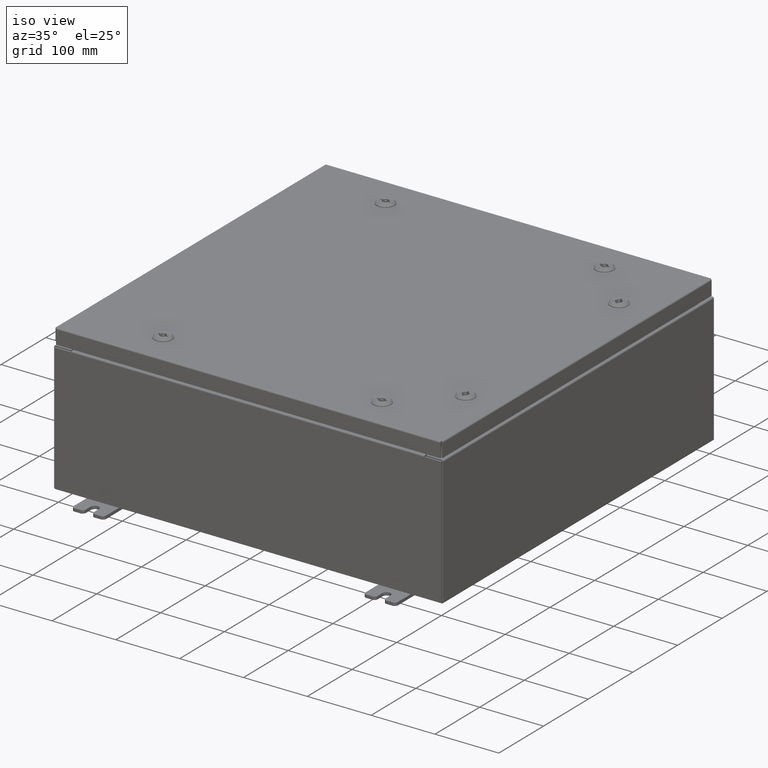
[diagram: clean part render]
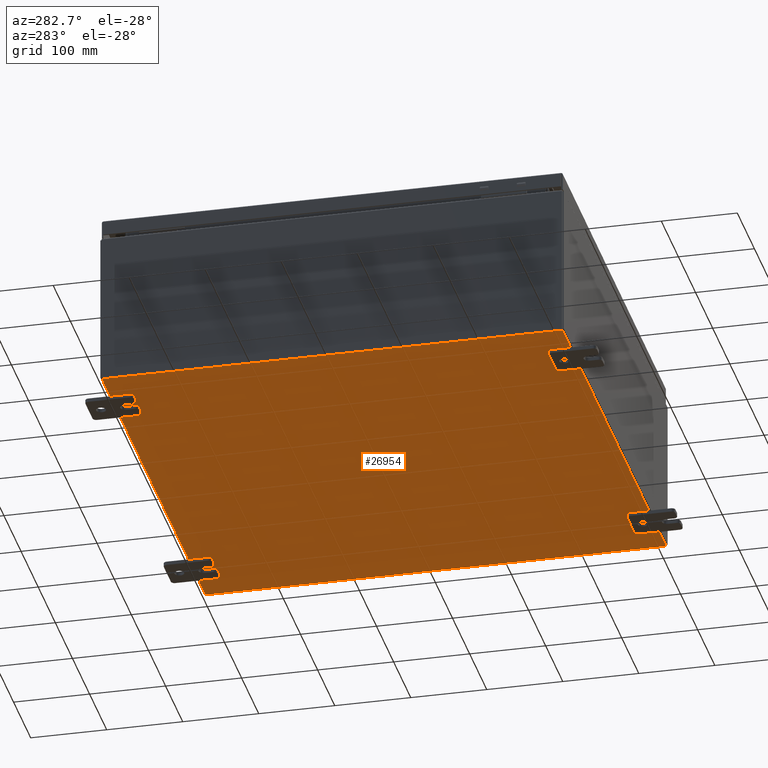
[diagram: tour spotlight — one face highlighted and labeled with its STEP entity id]
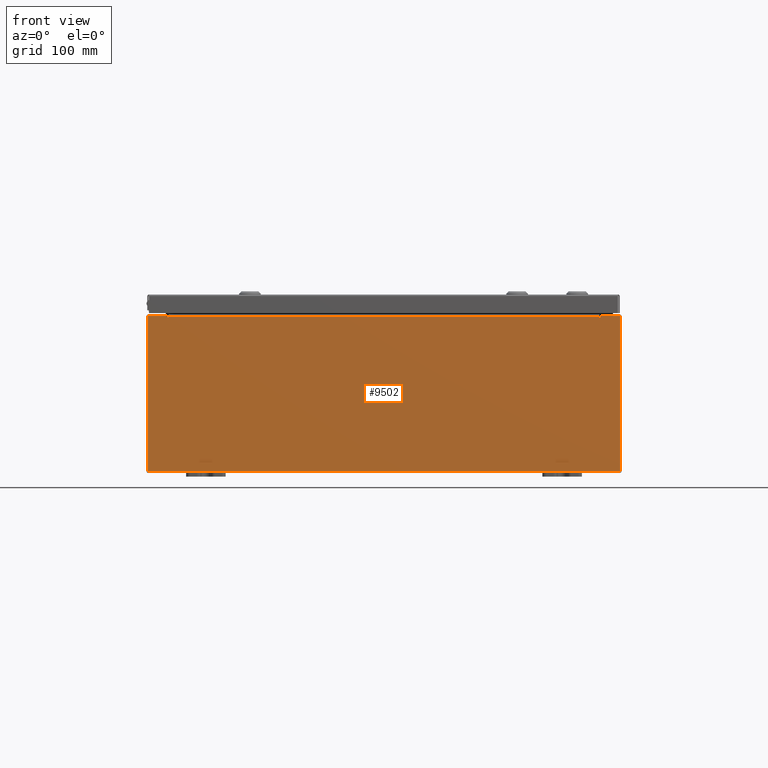
[diagram: tour spotlight — one face highlighted and labeled with its STEP entity id]
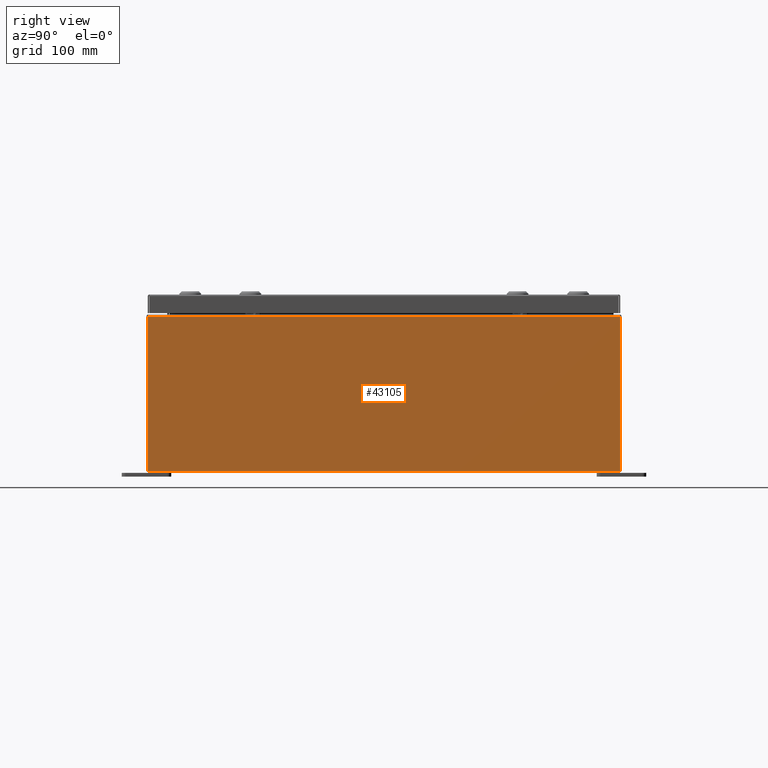
[diagram: tour spotlight — one face highlighted and labeled with its STEP entity id]
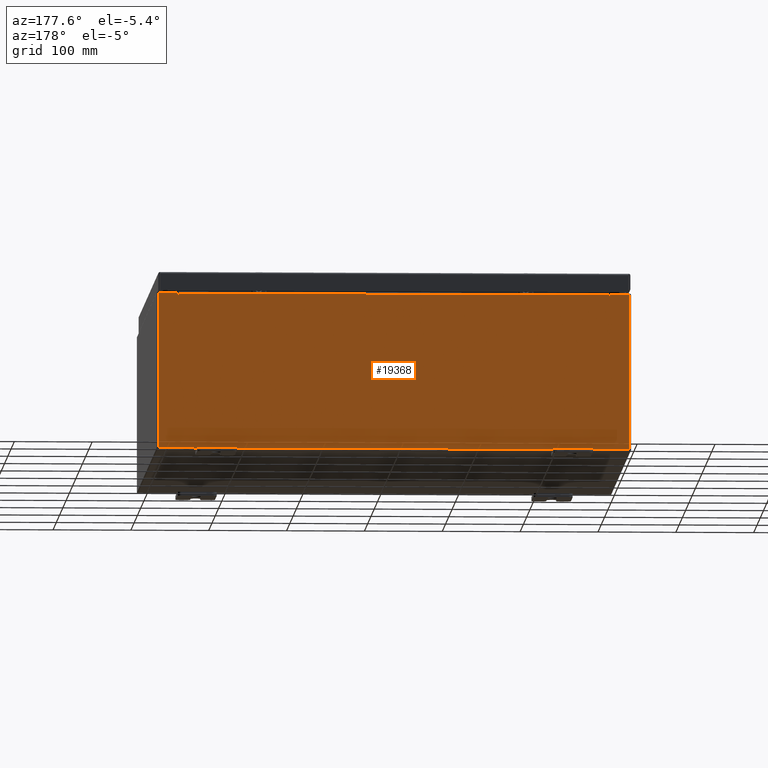
[diagram: tour spotlight — one face highlighted and labeled with its STEP entity id]
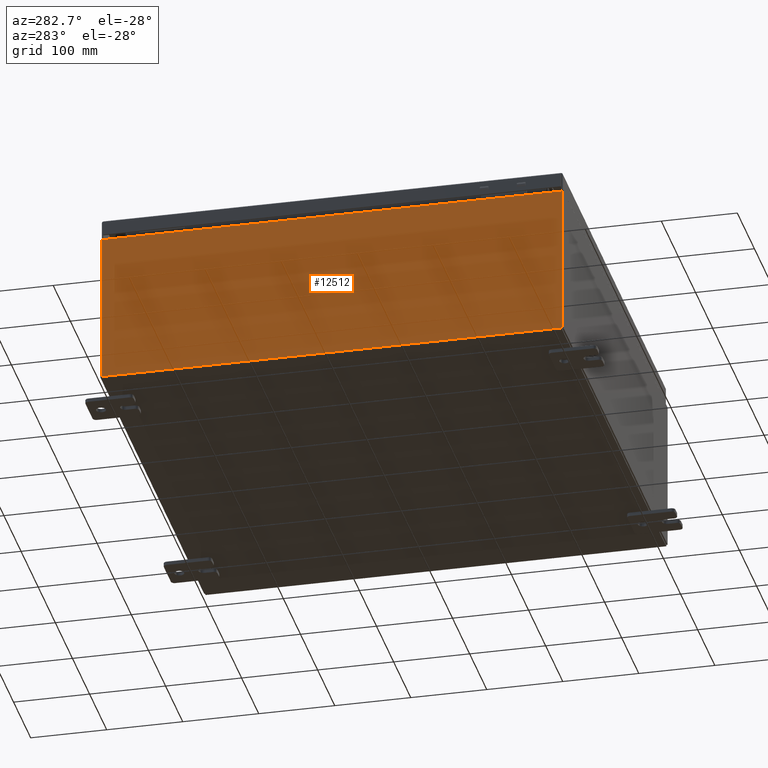
[diagram: tour spotlight — one face highlighted and labeled with its STEP entity id]
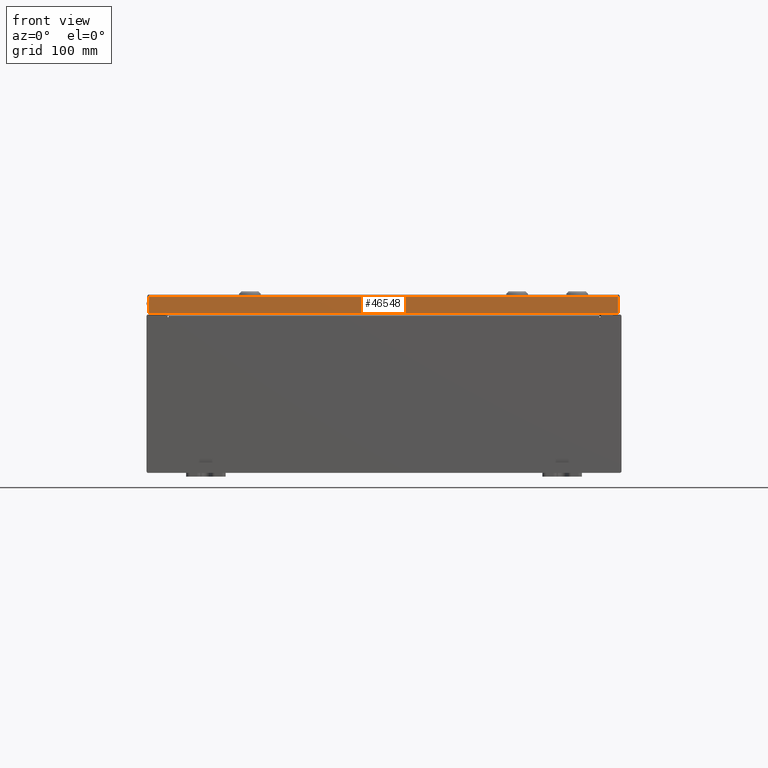
[diagram: tour spotlight — one face highlighted and labeled with its STEP entity id]
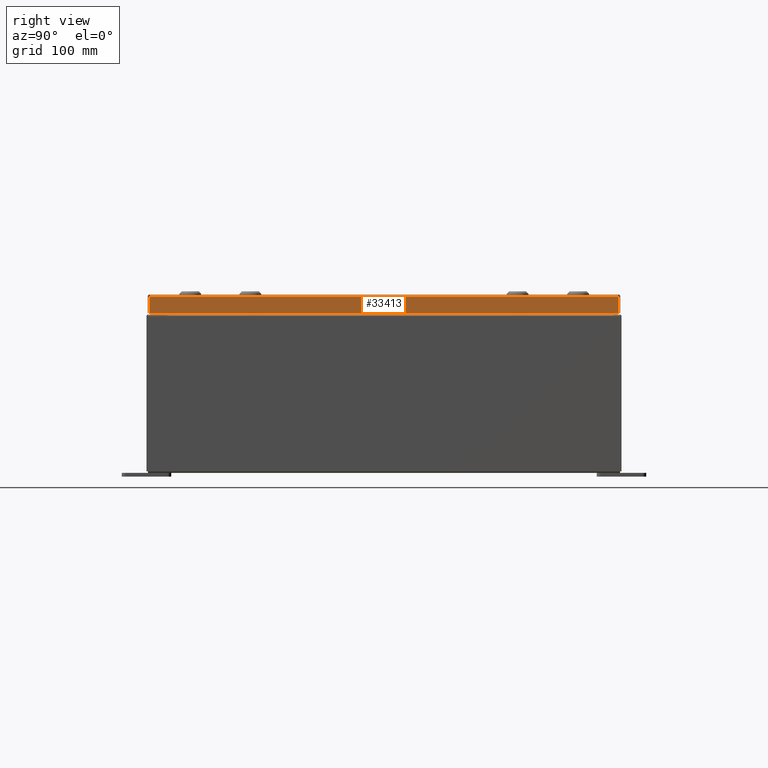
[diagram: tour spotlight — one face highlighted and labeled with its STEP entity id]
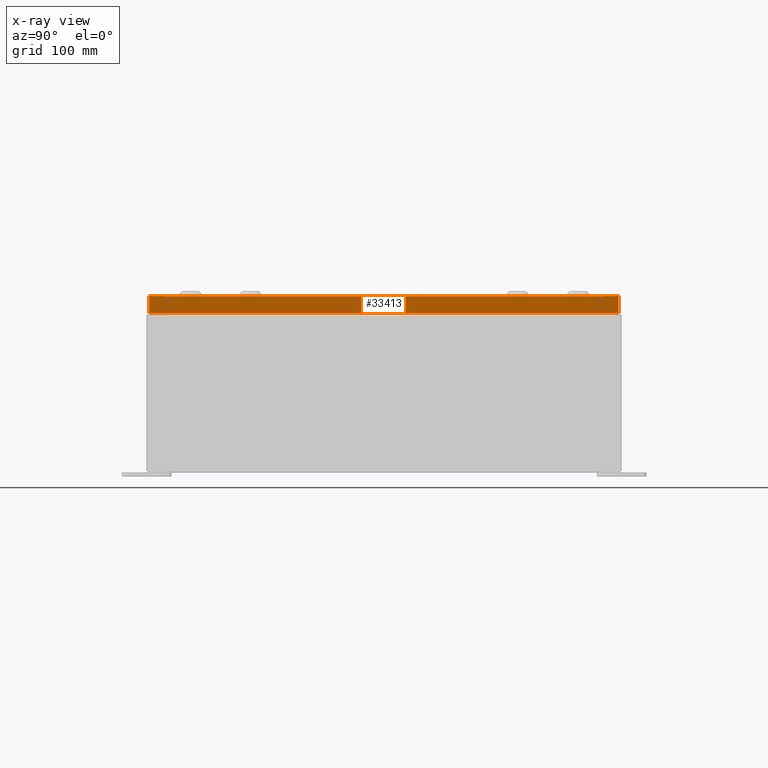
[diagram: x-ray of the same camera — body ghosted, this tour face saturated]
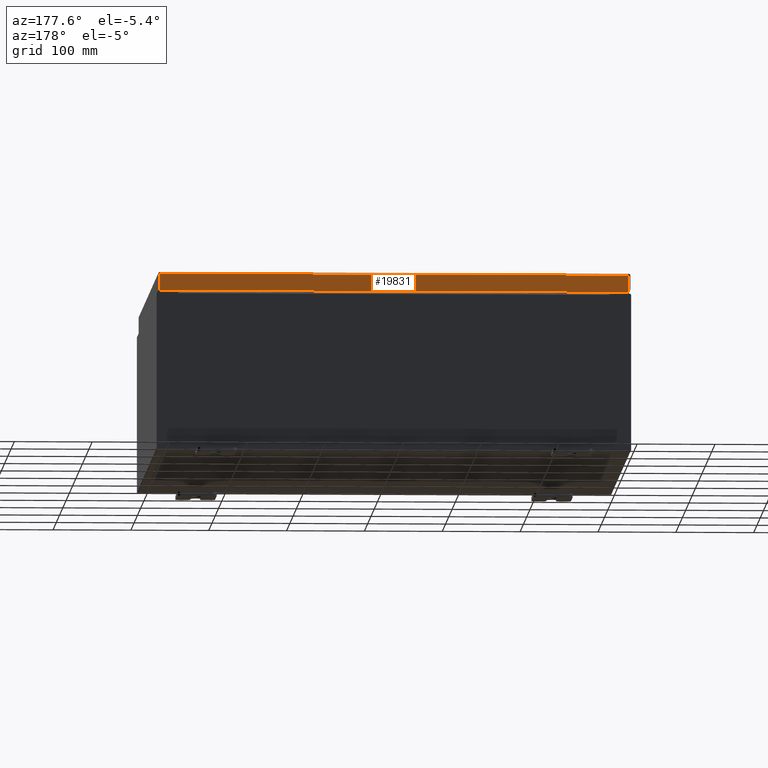
[diagram: tour spotlight — one face highlighted and labeled with its STEP entity id]
A machine part: a face-by-face anatomy tour. The part has 5420 B-rep faces; the first image is the clean iso view, then the 8 largest visible faces are spotlighted one at a time (largest first), each with its STEP entity span.

Face 1 — auxiliary view, entity #26954. In plain terms, the highlighted planar face has unit normal (0, 0, -1).
Definition (entity closure, byte-faithful):
#729 = VERTEX_POINT ( 'NONE', #18880 ) ;
#6023 = CARTESIAN_POINT ( 'NONE',  ( -11.91230000000000400, -11.92530000000000400, -0.07469999999999994700 ) ) ;
#7501 = CARTESIAN_POINT ( 'NONE',  ( 11.91229999999999800, 11.92529999999999600, -0.07469999999999994700 ) ) ;
#9193 = VECTOR ( 'NONE', #40409, 39.37007874015748100 ) ;
#10005 = CARTESIAN_POINT ( 'NONE',  ( -11.91230000000000400, -11.92530000000000000, -0.07469999999999994700 ) ) ;
#10063 = DIRECTION ( 'NONE',  ( -0.0000000000000000000, -1.000000000000000000, -0.0000000000000000000 ) ) ;
#12398 = ORIENTED_EDGE ( 'NONE', *, *, #39024, .F. ) ;
#13178 = AXIS2_PLACEMENT_3D ( 'NONE', #22010, #26939, #61169 ) ;
#13220 = DIRECTION ( 'NONE',  ( 1.000000000000000000, 0.0000000000000000000, 0.0000000000000000000 ) ) ;
#15040 = DIRECTION ( 'NONE',  ( -1.000000000000000000, -0.0000000000000000000, -0.0000000000000000000 ) ) ;
#16291 = VECTOR ( 'NONE', #10063, 39.37007874015748100 ) ;
#18880 = CARTESIAN_POINT ( 'NONE',  ( 11.91229999999998900, -11.92530000000000400, -0.07470000000000000300 ) ) ;
#19210 = LINE ( 'NONE', #6023, #9193 ) ;
#20700 = FACE_OUTER_BOUND ( 'NONE', #62757, .T. ) ;
#20965 = ORIENTED_EDGE ( 'NONE', *, *, #26267, .F. ) ;
#21484 = VECTOR ( 'NONE', #13220, 39.37007874015748100 ) ;
#22010 = CARTESIAN_POINT ( 'NONE',  ( 0.0000000000000000000, 0.0000000000000000000, -0.07470000000000000300 ) ) ;
#23048 = EDGE_CURVE ( 'NONE', #62707, #729, #27855, .T. ) ;
#24445 = CARTESIAN_POINT ( 'NONE',  ( 11.91229999999999800, 11.92529999999999800, -0.07469999999999994700 ) ) ;
#25875 = EDGE_CURVE ( 'NONE', #37989, #59841, #19210, .T. ) ;
#26267 = EDGE_CURVE ( 'NONE', #37989, #729, #47626, .T. ) ;
#26939 = DIRECTION ( 'NONE',  ( 0.0000000000000000000, 0.0000000000000000000, -1.000000000000000000 ) ) ;
#26954 = ADVANCED_FACE ( 'NONE', ( #20700 ), #46506, .T. ) ;
#27855 = LINE ( 'NONE', #24445, #16291 ) ;
#37559 = ORIENTED_EDGE ( 'NONE', *, *, #25875, .T. ) ;
#37989 = VERTEX_POINT ( 'NONE', #10005 ) ;
#38617 = ORIENTED_EDGE ( 'NONE', *, *, #23048, .T. ) ;
#39024 = EDGE_CURVE ( 'NONE', #62707, #59841, #59524, .T. ) ;
#40409 = DIRECTION ( 'NONE',  ( -0.0000000000000000000, 1.000000000000000000, -0.0000000000000000000 ) ) ;
#45043 = VECTOR ( 'NONE', #15040, 39.37007874015748100 ) ;
#46506 = PLANE ( 'NONE',  #13178 ) ;
#47626 = LINE ( 'NONE', #57169, #21484 ) ;
#49433 = CARTESIAN_POINT ( 'NONE',  ( -12.00000000000000400, 11.92529999999999800, -0.07470000000000000300 ) ) ;
#57169 = CARTESIAN_POINT ( 'NONE',  ( -12.00000000000000400, -11.92530000000000400, -0.07470000000000000300 ) ) ;
#57250 = CARTESIAN_POINT ( 'NONE',  ( -11.91230000000000400, 11.92529999999999800, -0.07470000000000000300 ) ) ;
#59524 = LINE ( 'NONE', #49433, #45043 ) ;
#59841 = VERTEX_POINT ( 'NONE', #57250 ) ;
#61169 = DIRECTION ( 'NONE',  ( -1.000000000000000000, 0.0000000000000000000, -0.0000000000000000000 ) ) ;
#62707 = VERTEX_POINT ( 'NONE', #7501 ) ;
#62757 = EDGE_LOOP ( 'NONE', ( #20965, #37559, #12398, #38617 ) ) ;

Face 2 — front view, entity #9502. In plain terms, the highlighted planar face has unit normal (-0, 1, -0).
Definition (entity closure, byte-faithful):
#2 = CARTESIAN_POINT ( 'NONE',  ( -10.92454999999999800, 0.0000000000000000000, 3.874949999999999700 ) ) ;
#640 = CARTESIAN_POINT ( 'NONE',  ( -10.90587500000000000, 0.0000000000000000000, 3.874949999999999700 ) ) ;
#912 = EDGE_CURVE ( 'NONE', #27180, #1119, #57610, .T. ) ;
#1029 = CARTESIAN_POINT ( 'NONE',  ( -10.92454999999999800, 0.0000000000000000000, 3.925299999999999600 ) ) ;
#1119 = VERTEX_POINT ( 'NONE', #1425 ) ;
#1281 = DIRECTION ( 'NONE',  ( 0.0000000000000000000, -1.000000000000000000, 0.0000000000000000000 ) ) ;
#1425 = CARTESIAN_POINT ( 'NONE',  ( 10.88720000000000200, 0.0000000000000000000, 3.912299999999999700 ) ) ;
#2493 = EDGE_CURVE ( 'NONE', #38007, #1119, #32469, .T. ) ;
#2518 = DIRECTION ( 'NONE',  ( -0.0000000000000000000, -0.0000000000000000000, 1.000000000000000000 ) ) ;
#2762 = VECTOR ( 'NONE', #17416, 39.37007874015748100 ) ;
#2878 = CARTESIAN_POINT ( 'NONE',  ( -10.88720000000000000, -0.0000000000000000000, 3.874949999999999700 ) ) ;
#3585 = DIRECTION ( 'NONE',  ( -1.000000000000000000, -0.0000000000000000000, -0.0000000000000000000 ) ) ;
#5577 = DIRECTION ( 'NONE',  ( 0.0000000000000000000, 0.0000000000000000000, -1.000000000000000000 ) ) ;
#6754 = VECTOR ( 'NONE', #2518, 39.37007874015748100 ) ;
#7212 = VERTEX_POINT ( 'NONE', #49278 ) ;
#7562 = ORIENTED_EDGE ( 'NONE', *, *, #62289, .T. ) ;
#7894 = ORIENTED_EDGE ( 'NONE', *, *, #29699, .T. ) ;
#8317 = LINE ( 'NONE', #27001, #6754 ) ;
#8319 = CARTESIAN_POINT ( 'NONE',  ( 10.90587500000000200, 0.0000000000000000000, 3.874949999999999700 ) ) ;
#9017 = LINE ( 'NONE', #10357, #35189 ) ;
#9502 = ADVANCED_FACE ( 'NONE', ( #27250 ), #60005, .F. ) ;
#10357 = CARTESIAN_POINT ( 'NONE',  ( -11.92530000000000000, 0.0000000000000000000, 3.925299999999999600 ) ) ;
#10682 = CARTESIAN_POINT ( 'NONE',  ( 10.92455000000000000, 0.0000000000000000000, 3.925299999999999600 ) ) ;
#10823 = CARTESIAN_POINT ( 'NONE',  ( -10.88720000000000200, 1.024442997624098700E-016, 3.912299999999999700 ) ) ;
#10890 = AXIS2_PLACEMENT_3D ( 'NONE', #25782, #1281, #35672 ) ;
#12393 = VERTEX_POINT ( 'NONE', #53339 ) ;
#13250 = DIRECTION ( 'NONE',  ( 0.0000000000000000000, 0.0000000000000000000, -1.000000000000000000 ) ) ;
#14469 = CARTESIAN_POINT ( 'NONE',  ( -11.92530000000000000, 0.0000000000000000000, 3.925299999999999600 ) ) ;
#14478 = VERTEX_POINT ( 'NONE', #2 ) ;
#15434 = VECTOR ( 'NONE', #16164, 39.37007874015748100 ) ;
#15562 = CIRCLE ( 'NONE', #27048, 0.01867499999999949400 ) ;
#16164 = DIRECTION ( 'NONE',  ( 1.000000000000000000, 0.0000000000000000000, 0.0000000000000000000 ) ) ;
#16521 = EDGE_CURVE ( 'NONE', #12393, #7212, #59630, .T. ) ;
#17416 = DIRECTION ( 'NONE',  ( 0.0000000000000000000, 0.0000000000000000000, 1.000000000000000000 ) ) ;
#17419 = ORIENTED_EDGE ( 'NONE', *, *, #50487, .F. ) ;
#17671 = CARTESIAN_POINT ( 'NONE',  ( -11.92530000000000000, 0.0000000000000000000, 3.925299999999999600 ) ) ;
#18678 = EDGE_CURVE ( 'NONE', #14478, #61600, #53432, .T. ) ;
#20953 = CIRCLE ( 'NONE', #37211, 0.01867499999999949400 ) ;
#21042 = EDGE_CURVE ( 'NONE', #27180, #28343, #35686, .T. ) ;
#21123 = VERTEX_POINT ( 'NONE', #17671 ) ;
#22942 = VECTOR ( 'NONE', #41901, 39.37007874015748100 ) ;
#23094 = VERTEX_POINT ( 'NONE', #10682 ) ;
#23175 = ORIENTED_EDGE ( 'NONE', *, *, #18678, .F. ) ;
#23623 = VECTOR ( 'NONE', #58560, 39.37007874015748100 ) ;
#24727 = CARTESIAN_POINT ( 'NONE',  ( 11.92530000000000000, 0.0000000000000000000, 3.925299999999999600 ) ) ;
#25782 = CARTESIAN_POINT ( 'NONE',  ( 0.0000000000000000000, 0.0000000000000000000, 0.0000000000000000000 ) ) ;
#26717 = ORIENTED_EDGE ( 'NONE', *, *, #43690, .F. ) ;
#27001 = CARTESIAN_POINT ( 'NONE',  ( -11.92530000000000000, 0.0000000000000000000, 3.925299999999999600 ) ) ;
#27048 = AXIS2_PLACEMENT_3D ( 'NONE', #8319, #42677, #13250 ) ;
#27180 = VERTEX_POINT ( 'NONE', #48970 ) ;
#27250 = FACE_OUTER_BOUND ( 'NONE', #31634, .T. ) ;
#28124 = ORIENTED_EDGE ( 'NONE', *, *, #60510, .F. ) ;
#28343 = VERTEX_POINT ( 'NONE', #2878 ) ;
#28646 = EDGE_CURVE ( 'NONE', #21123, #61600, #9017, .T. ) ;
#28773 = VERTEX_POINT ( 'NONE', #55571 ) ;
#29528 = LINE ( 'NONE', #33033, #55568 ) ;
#29699 = EDGE_CURVE ( 'NONE', #40081, #21123, #8317, .T. ) ;
#31450 = ORIENTED_EDGE ( 'NONE', *, *, #912, .T. ) ;
#31522 = CARTESIAN_POINT ( 'NONE',  ( -11.92530000000000000, 0.0000000000000000000, -3.925299999999999600 ) ) ;
#31634 = EDGE_LOOP ( 'NONE', ( #23175, #26717, #53129, #31450, #56711, #28124, #17419, #7562, #43179, #34244, #7894, #35602 ) ) ;
#31883 = DIRECTION ( 'NONE',  ( 0.0000000000000000000, 0.0000000000000000000, -1.000000000000000000 ) ) ;
#32469 = LINE ( 'NONE', #44851, #40713 ) ;
#33033 = CARTESIAN_POINT ( 'NONE',  ( -11.92530000000000000, 0.0000000000000000000, -3.925299999999999600 ) ) ;
#34152 = VECTOR ( 'NONE', #31883, 39.37007874015748100 ) ;
#34244 = ORIENTED_EDGE ( 'NONE', *, *, #34697, .T. ) ;
#34697 = EDGE_CURVE ( 'NONE', #7212, #40081, #29528, .T. ) ;
#35050 = DIRECTION ( 'NONE',  ( -0.0000000000000000000, 1.000000000000000000, -0.0000000000000000000 ) ) ;
#35189 = VECTOR ( 'NONE', #39754, 39.37007874015748100 ) ;
#35602 = ORIENTED_EDGE ( 'NONE', *, *, #28646, .T. ) ;
#35672 = DIRECTION ( 'NONE',  ( 0.0000000000000000000, -0.0000000000000000000, -1.000000000000000000 ) ) ;
#35686 = LINE ( 'NONE', #36784, #34152 ) ;
#36784 = CARTESIAN_POINT ( 'NONE',  ( -10.88720000000000000, -0.0000000000000000000, 0.0000000000000000000 ) ) ;
#37211 = AXIS2_PLACEMENT_3D ( 'NONE', #640, #35050, #5577 ) ;
#38007 = VERTEX_POINT ( 'NONE', #49332 ) ;
#39754 = DIRECTION ( 'NONE',  ( 1.000000000000000000, 0.0000000000000000000, 0.0000000000000000000 ) ) ;
#40081 = VERTEX_POINT ( 'NONE', #31522 ) ;
#40713 = VECTOR ( 'NONE', #62549, 39.37007874015748100 ) ;
#41901 = DIRECTION ( 'NONE',  ( -4.340572780400004900E-014, 0.0000000000000000000, -1.000000000000000000 ) ) ;
#42677 = DIRECTION ( 'NONE',  ( -0.0000000000000000000, 1.000000000000000000, -0.0000000000000000000 ) ) ;
#43179 = ORIENTED_EDGE ( 'NONE', *, *, #16521, .T. ) ;
#43690 = EDGE_CURVE ( 'NONE', #28343, #14478, #20953, .T. ) ;
#44851 = CARTESIAN_POINT ( 'NONE',  ( 10.88720000000000200, 0.0000000000000000000, 0.0000000000000000000 ) ) ;
#46225 = VECTOR ( 'NONE', #53749, 39.37007874015748100 ) ;
#46629 = CARTESIAN_POINT ( 'NONE',  ( 10.92454999999983300, -0.0000000000000000000, -4.741880436811814400E-013 ) ) ;
#48970 = CARTESIAN_POINT ( 'NONE',  ( -10.88720000000000000, 1.024442997624098700E-016, 3.912299999999999700 ) ) ;
#49278 = CARTESIAN_POINT ( 'NONE',  ( 11.92530000000000000, 0.0000000000000000000, -3.925299999999999600 ) ) ;
#49332 = CARTESIAN_POINT ( 'NONE',  ( 10.88720000000000200, 0.0000000000000000000, 3.874949999999999700 ) ) ;
#50487 = EDGE_CURVE ( 'NONE', #23094, #28773, #61995, .T. ) ;
#51760 = CARTESIAN_POINT ( 'NONE',  ( -10.92454999999999800, -0.0000000000000000000, 0.0000000000000000000 ) ) ;
#53129 = ORIENTED_EDGE ( 'NONE', *, *, #21042, .F. ) ;
#53339 = CARTESIAN_POINT ( 'NONE',  ( 11.92530000000000000, 0.0000000000000000000, 3.925299999999999600 ) ) ;
#53432 = LINE ( 'NONE', #51760, #2762 ) ;
#53749 = DIRECTION ( 'NONE',  ( 1.000000000000000000, 0.0000000000000000000, 0.0000000000000000000 ) ) ;
#55568 = VECTOR ( 'NONE', #3585, 39.37007874015748100 ) ;
#55571 = CARTESIAN_POINT ( 'NONE',  ( 10.92455000000000000, 0.0000000000000000000, 3.874949999999999700 ) ) ;
#56711 = ORIENTED_EDGE ( 'NONE', *, *, #2493, .F. ) ;
#57610 = LINE ( 'NONE', #10823, #15434 ) ;
#58560 = DIRECTION ( 'NONE',  ( 0.0000000000000000000, 0.0000000000000000000, -1.000000000000000000 ) ) ;
#59179 = LINE ( 'NONE', #14469, #46225 ) ;
#59630 = LINE ( 'NONE', #24727, #23623 ) ;
#60005 = PLANE ( 'NONE',  #10890 ) ;
#60510 = EDGE_CURVE ( 'NONE', #28773, #38007, #15562, .T. ) ;
#61600 = VERTEX_POINT ( 'NONE', #1029 ) ;
#61995 = LINE ( 'NONE', #46629, #22942 ) ;
#62289 = EDGE_CURVE ( 'NONE', #23094, #12393, #59179, .T. ) ;
#62549 = DIRECTION ( 'NONE',  ( 0.0000000000000000000, 0.0000000000000000000, 1.000000000000000000 ) ) ;

Face 3 — right view, entity #43105. In plain terms, the highlighted planar face has unit normal (-1, 0, 0).
Definition (entity closure, byte-faithful):
#2074 = DIRECTION ( 'NONE',  ( -0.0000000000000000000, -1.000000000000000000, -0.0000000000000000000 ) ) ;
#2200 = LINE ( 'NONE', #47070, #39853 ) ;
#4713 = ORIENTED_EDGE ( 'NONE', *, *, #42979, .T. ) ;
#5962 = ORIENTED_EDGE ( 'NONE', *, *, #53484, .T. ) ;
#14996 = CARTESIAN_POINT ( 'NONE',  ( 12.00000000000003000, 11.92529999999999600, 7.837599999999992100 ) ) ;
#16133 = CARTESIAN_POINT ( 'NONE',  ( 11.99999999999999800, 0.0000000000000000000, -4.327932773236200600E-014 ) ) ;
#20652 = LINE ( 'NONE', #52724, #32197 ) ;
#21749 = FACE_OUTER_BOUND ( 'NONE', #53660, .T. ) ;
#25247 = AXIS2_PLACEMENT_3D ( 'NONE', #16133, #55392, #26054 ) ;
#26054 = DIRECTION ( 'NONE',  ( 3.584876173029202900E-015, 0.0000000000000000000, 1.000000000000000000 ) ) ;
#26389 = LINE ( 'NONE', #39791, #50945 ) ;
#28976 = EDGE_CURVE ( 'NONE', #52808, #40293, #2200, .T. ) ;
#31543 = CARTESIAN_POINT ( 'NONE',  ( 11.99999999999999800, -11.92530000000000400, 0.01299999999999984700 ) ) ;
#32197 = VECTOR ( 'NONE', #48035, 39.37007874015748100 ) ;
#37050 = LINE ( 'NONE', #31543, #50100 ) ;
#39791 = CARTESIAN_POINT ( 'NONE',  ( 12.00000000000003000, 11.92529999999999800, 7.837599999999992100 ) ) ;
#39853 = VECTOR ( 'NONE', #51771, 39.37007874015748100 ) ;
#40293 = VERTEX_POINT ( 'NONE', #52896 ) ;
#42537 = CARTESIAN_POINT ( 'NONE',  ( 11.99999999999999800, 11.92529999999999600, 0.01299999999999984700 ) ) ;
#42979 = EDGE_CURVE ( 'NONE', #61490, #52808, #26389, .T. ) ;
#43105 = ADVANCED_FACE ( 'NONE', ( #21749 ), #50515, .F. ) ;
#47070 = CARTESIAN_POINT ( 'NONE',  ( 11.99999999999999800, -11.92530000000000400, -4.327932773236200600E-014 ) ) ;
#48035 = DIRECTION ( 'NONE',  ( 3.584876173029202900E-015, 0.0000000000000000000, 1.000000000000000000 ) ) ;
#50100 = VECTOR ( 'NONE', #2074, 39.37007874015748100 ) ;
#50515 = PLANE ( 'NONE',  #25247 ) ;
#50945 = VECTOR ( 'NONE', #59249, 39.37007874015748100 ) ;
#51771 = DIRECTION ( 'NONE',  ( -3.584876173029202900E-015, 0.0000000000000000000, -1.000000000000000000 ) ) ;
#52724 = CARTESIAN_POINT ( 'NONE',  ( 11.99999999999999800, 11.92529999999999800, -4.327932773236200600E-014 ) ) ;
#52808 = VERTEX_POINT ( 'NONE', #53862 ) ;
#52896 = CARTESIAN_POINT ( 'NONE',  ( 11.99999999999999800, -11.92530000000000400, 0.01299999999999983600 ) ) ;
#53484 = EDGE_CURVE ( 'NONE', #59826, #61490, #20652, .T. ) ;
#53660 = EDGE_LOOP ( 'NONE', ( #4713, #56088, #61027, #5962 ) ) ;
#53862 = CARTESIAN_POINT ( 'NONE',  ( 12.00000000000002700, -11.92530000000000400, 7.837599999999998300 ) ) ;
#55392 = DIRECTION ( 'NONE',  ( -1.000000000000000000, 0.0000000000000000000, 3.584876173029202900E-015 ) ) ;
#56088 = ORIENTED_EDGE ( 'NONE', *, *, #28976, .T. ) ;
#59249 = DIRECTION ( 'NONE',  ( -0.0000000000000000000, -1.000000000000000000, -0.0000000000000000000 ) ) ;
#59826 = VERTEX_POINT ( 'NONE', #42537 ) ;
#61027 = ORIENTED_EDGE ( 'NONE', *, *, #61792, .F. ) ;
#61490 = VERTEX_POINT ( 'NONE', #14996 ) ;
#61792 = EDGE_CURVE ( 'NONE', #59826, #40293, #37050, .T. ) ;

Face 4 — auxiliary view, entity #19368. In plain terms, the highlighted planar face has unit normal (0, -1, 0).
Definition (entity closure, byte-faithful):
#254 = LINE ( 'NONE', #21401, #1796 ) ;
#1796 = VECTOR ( 'NONE', #55690, 39.37007874015748100 ) ;
#2120 = VERTEX_POINT ( 'NONE', #31140 ) ;
#2383 = LINE ( 'NONE', #45022, #43107 ) ;
#2632 = DIRECTION ( 'NONE',  ( 0.0000000000000000000, -1.000000000000000000, 0.0000000000000000000 ) ) ;
#2742 = EDGE_CURVE ( 'NONE', #27093, #43897, #16870, .T. ) ;
#3241 = VERTEX_POINT ( 'NONE', #32012 ) ;
#4292 = CARTESIAN_POINT ( 'NONE',  ( -10.90587500000000000, 0.0000000000000000000, 3.874949999999999700 ) ) ;
#4938 = CARTESIAN_POINT ( 'NONE',  ( -10.88720000000000000, -0.0000000000000000000, 3.874949999999999700 ) ) ;
#5168 = CARTESIAN_POINT ( 'NONE',  ( -10.92454999999999800, -0.0000000000000000000, 0.0000000000000000000 ) ) ;
#5801 = LINE ( 'NONE', #22532, #31974 ) ;
#6350 = DIRECTION ( 'NONE',  ( 1.000000000000000000, 0.0000000000000000000, 0.0000000000000000000 ) ) ;
#6413 = CARTESIAN_POINT ( 'NONE',  ( -10.88720000000000200, 1.024442997624098700E-016, 3.912299999999999700 ) ) ;
#6578 = VECTOR ( 'NONE', #60565, 39.37007874015748100 ) ;
#6698 = CARTESIAN_POINT ( 'NONE',  ( -10.92454999999999800, 0.0000000000000000000, 3.874949999999999700 ) ) ;
#6880 = CARTESIAN_POINT ( 'NONE',  ( 10.88720000000000200, 0.0000000000000000000, 3.912299999999999700 ) ) ;
#7727 = DIRECTION ( 'NONE',  ( 0.0000000000000000000, 0.0000000000000000000, -1.000000000000000000 ) ) ;
#9223 = DIRECTION ( 'NONE',  ( 0.0000000000000000000, 0.0000000000000000000, -1.000000000000000000 ) ) ;
#9378 = EDGE_CURVE ( 'NONE', #3241, #2120, #31895, .T. ) ;
#9764 = EDGE_CURVE ( 'NONE', #2120, #52904, #5801, .T. ) ;
#10349 = VECTOR ( 'NONE', #47246, 39.37007874015748100 ) ;
#10904 = VECTOR ( 'NONE', #54700, 39.37007874015748100 ) ;
#12946 = CARTESIAN_POINT ( 'NONE',  ( 10.92455000000000000, 0.0000000000000000000, 3.874949999999999700 ) ) ;
#13150 = EDGE_CURVE ( 'NONE', #13981, #31399, #15283, .T. ) ;
#13981 = VERTEX_POINT ( 'NONE', #6698 ) ;
#15231 = CARTESIAN_POINT ( 'NONE',  ( -11.92530000000000000, 0.0000000000000000000, -3.925299999999999600 ) ) ;
#15283 = LINE ( 'NONE', #5168, #28368 ) ;
#15349 = DIRECTION ( 'NONE',  ( -4.340572780400004900E-014, 0.0000000000000000000, -1.000000000000000000 ) ) ;
#15863 = EDGE_CURVE ( 'NONE', #34537, #3241, #43636, .T. ) ;
#16282 = CARTESIAN_POINT ( 'NONE',  ( 10.88720000000000200, 0.0000000000000000000, 3.874949999999999700 ) ) ;
#16867 = ORIENTED_EDGE ( 'NONE', *, *, #13150, .F. ) ;
#16870 = CIRCLE ( 'NONE', #45218, 0.01867499999999949400 ) ;
#17807 = CARTESIAN_POINT ( 'NONE',  ( -10.88720000000000000, -0.0000000000000000000, 0.0000000000000000000 ) ) ;
#17853 = VERTEX_POINT ( 'NONE', #43705 ) ;
#19368 = ADVANCED_FACE ( 'NONE', ( #48065 ), #27125, .F. ) ;
#19814 = AXIS2_PLACEMENT_3D ( 'NONE', #4292, #38674, #9223 ) ;
#20427 = CARTESIAN_POINT ( 'NONE',  ( -11.92530000000000000, 0.0000000000000000000, 3.925299999999999600 ) ) ;
#20621 = CARTESIAN_POINT ( 'NONE',  ( -10.92454999999999800, 0.0000000000000000000, 3.925299999999999600 ) ) ;
#20826 = LINE ( 'NONE', #35804, #35438 ) ;
#21401 = CARTESIAN_POINT ( 'NONE',  ( -11.92530000000000000, 0.0000000000000000000, 3.925299999999999600 ) ) ;
#22532 = CARTESIAN_POINT ( 'NONE',  ( -11.92530000000000000, 0.0000000000000000000, 3.925299999999999600 ) ) ;
#24736 = EDGE_CURVE ( 'NONE', #52904, #31399, #20826, .T. ) ;
#25016 = CARTESIAN_POINT ( 'NONE',  ( 10.92455000000000000, 0.0000000000000000000, 3.925299999999999600 ) ) ;
#25230 = ORIENTED_EDGE ( 'NONE', *, *, #35863, .T. ) ;
#26070 = CIRCLE ( 'NONE', #19814, 0.01867499999999949400 ) ;
#26360 = CARTESIAN_POINT ( 'NONE',  ( 10.88720000000000200, 0.0000000000000000000, 0.0000000000000000000 ) ) ;
#26527 = VERTEX_POINT ( 'NONE', #25016 ) ;
#27093 = VERTEX_POINT ( 'NONE', #12946 ) ;
#27125 = PLANE ( 'NONE',  #55951 ) ;
#28368 = VECTOR ( 'NONE', #39533, 39.37007874015748100 ) ;
#30406 = ORIENTED_EDGE ( 'NONE', *, *, #58291, .F. ) ;
#31027 = ORIENTED_EDGE ( 'NONE', *, *, #52660, .F. ) ;
#31140 = CARTESIAN_POINT ( 'NONE',  ( -11.92530000000000000, 0.0000000000000000000, -3.925299999999999600 ) ) ;
#31221 = LINE ( 'NONE', #26360, #6578 ) ;
#31399 = VERTEX_POINT ( 'NONE', #20621 ) ;
#31895 = LINE ( 'NONE', #15231, #43367 ) ;
#31974 = VECTOR ( 'NONE', #56780, 39.37007874015748100 ) ;
#32012 = CARTESIAN_POINT ( 'NONE',  ( 11.92530000000000000, 0.0000000000000000000, -3.925299999999999600 ) ) ;
#32249 = CARTESIAN_POINT ( 'NONE',  ( 11.92530000000000000, 0.0000000000000000000, 3.925299999999999600 ) ) ;
#32534 = VERTEX_POINT ( 'NONE', #4938 ) ;
#33352 = CARTESIAN_POINT ( 'NONE',  ( 11.92530000000000000, 0.0000000000000000000, 3.925299999999999600 ) ) ;
#34537 = VERTEX_POINT ( 'NONE', #33352 ) ;
#35438 = VECTOR ( 'NONE', #6350, 39.37007874015748100 ) ;
#35804 = CARTESIAN_POINT ( 'NONE',  ( -11.92530000000000000, 0.0000000000000000000, 3.925299999999999600 ) ) ;
#35863 = EDGE_CURVE ( 'NONE', #26527, #34537, #254, .T. ) ;
#36232 = ORIENTED_EDGE ( 'NONE', *, *, #57110, .F. ) ;
#36996 = DIRECTION ( 'NONE',  ( 0.0000000000000000000, -0.0000000000000000000, -1.000000000000000000 ) ) ;
#37447 = EDGE_CURVE ( 'NONE', #17853, #50353, #50104, .T. ) ;
#38674 = DIRECTION ( 'NONE',  ( -0.0000000000000000000, 1.000000000000000000, -0.0000000000000000000 ) ) ;
#39284 = ORIENTED_EDGE ( 'NONE', *, *, #15863, .T. ) ;
#39533 = DIRECTION ( 'NONE',  ( 0.0000000000000000000, 0.0000000000000000000, 1.000000000000000000 ) ) ;
#39682 = ORIENTED_EDGE ( 'NONE', *, *, #24736, .T. ) ;
#42112 = VECTOR ( 'NONE', #7727, 39.37007874015748100 ) ;
#43107 = VECTOR ( 'NONE', #15349, 39.37007874015748100 ) ;
#43367 = VECTOR ( 'NONE', #54493, 39.37007874015748100 ) ;
#43636 = LINE ( 'NONE', #32249, #42112 ) ;
#43705 = CARTESIAN_POINT ( 'NONE',  ( -10.88720000000000000, 1.024442997624098700E-016, 3.912299999999999700 ) ) ;
#43897 = VERTEX_POINT ( 'NONE', #16282 ) ;
#45022 = CARTESIAN_POINT ( 'NONE',  ( 10.92454999999983300, -0.0000000000000000000, -4.741880436811814400E-013 ) ) ;
#45218 = AXIS2_PLACEMENT_3D ( 'NONE', #57763, #49816, #47107 ) ;
#45538 = EDGE_CURVE ( 'NONE', #26527, #27093, #2383, .T. ) ;
#46478 = LINE ( 'NONE', #17807, #10349 ) ;
#47107 = DIRECTION ( 'NONE',  ( 0.0000000000000000000, 0.0000000000000000000, -1.000000000000000000 ) ) ;
#47246 = DIRECTION ( 'NONE',  ( 0.0000000000000000000, 0.0000000000000000000, -1.000000000000000000 ) ) ;
#47888 = EDGE_LOOP ( 'NONE', ( #16867, #31027, #30406, #53255, #36232, #48134, #57684, #25230, #39284, #55967, #53728, #39682 ) ) ;
#48065 = FACE_OUTER_BOUND ( 'NONE', #47888, .T. ) ;
#48134 = ORIENTED_EDGE ( 'NONE', *, *, #2742, .F. ) ;
#49816 = DIRECTION ( 'NONE',  ( -0.0000000000000000000, 1.000000000000000000, -0.0000000000000000000 ) ) ;
#50104 = LINE ( 'NONE', #6413, #10904 ) ;
#50353 = VERTEX_POINT ( 'NONE', #6880 ) ;
#51171 = CARTESIAN_POINT ( 'NONE',  ( 0.0000000000000000000, 0.0000000000000000000, 0.0000000000000000000 ) ) ;
#52660 = EDGE_CURVE ( 'NONE', #32534, #13981, #26070, .T. ) ;
#52904 = VERTEX_POINT ( 'NONE', #20427 ) ;
#53255 = ORIENTED_EDGE ( 'NONE', *, *, #37447, .T. ) ;
#53728 = ORIENTED_EDGE ( 'NONE', *, *, #9764, .T. ) ;
#54493 = DIRECTION ( 'NONE',  ( -1.000000000000000000, -0.0000000000000000000, -0.0000000000000000000 ) ) ;
#54700 = DIRECTION ( 'NONE',  ( 1.000000000000000000, 0.0000000000000000000, 0.0000000000000000000 ) ) ;
#55690 = DIRECTION ( 'NONE',  ( 1.000000000000000000, 0.0000000000000000000, 0.0000000000000000000 ) ) ;
#55951 = AXIS2_PLACEMENT_3D ( 'NONE', #51171, #2632, #36996 ) ;
#55967 = ORIENTED_EDGE ( 'NONE', *, *, #9378, .T. ) ;
#56780 = DIRECTION ( 'NONE',  ( -0.0000000000000000000, -0.0000000000000000000, 1.000000000000000000 ) ) ;
#57110 = EDGE_CURVE ( 'NONE', #43897, #50353, #31221, .T. ) ;
#57684 = ORIENTED_EDGE ( 'NONE', *, *, #45538, .F. ) ;
#57763 = CARTESIAN_POINT ( 'NONE',  ( 10.90587500000000200, 0.0000000000000000000, 3.874949999999999700 ) ) ;
#58291 = EDGE_CURVE ( 'NONE', #17853, #32534, #46478, .T. ) ;
#60565 = DIRECTION ( 'NONE',  ( 0.0000000000000000000, 0.0000000000000000000, 1.000000000000000000 ) ) ;

Face 5 — auxiliary view, entity #12512. In plain terms, the highlighted planar face has unit normal (1, 0, 0).
Definition (entity closure, byte-faithful):
#248 = CARTESIAN_POINT ( 'NONE',  ( -12.00000000000000400, 11.92529999999999800, 0.01299999999999983600 ) ) ;
#3212 = VECTOR ( 'NONE', #32831, 39.37007874015748100 ) ;
#3387 = ORIENTED_EDGE ( 'NONE', *, *, #25622, .T. ) ;
#7196 = ORIENTED_EDGE ( 'NONE', *, *, #58360, .T. ) ;
#12512 = ADVANCED_FACE ( 'NONE', ( #46872 ), #54176, .F. ) ;
#13045 = CARTESIAN_POINT ( 'NONE',  ( -12.00000000000000400, -11.92530000000000400, -4.327932773236202500E-014 ) ) ;
#13172 = VERTEX_POINT ( 'NONE', #248 ) ;
#13311 = CARTESIAN_POINT ( 'NONE',  ( -12.00000000000000400, 11.92529999999999800, -4.327932773236202500E-014 ) ) ;
#15487 = AXIS2_PLACEMENT_3D ( 'NONE', #34495, #24802, #59051 ) ;
#16957 = EDGE_CURVE ( 'NONE', #33660, #13172, #24364, .T. ) ;
#18475 = VECTOR ( 'NONE', #23668, 39.37007874015748100 ) ;
#18805 = VECTOR ( 'NONE', #62110, 39.37007874015748100 ) ;
#23668 = DIRECTION ( 'NONE',  ( 0.0000000000000000000, 1.000000000000000000, 0.0000000000000000000 ) ) ;
#24364 = LINE ( 'NONE', #13311, #35922 ) ;
#24802 = DIRECTION ( 'NONE',  ( 1.000000000000000000, 0.0000000000000000000, 3.584876173029202900E-015 ) ) ;
#24834 = CARTESIAN_POINT ( 'NONE',  ( -12.00000000000000400, -11.92530000000000000, 0.01299999999999984700 ) ) ;
#25622 = EDGE_CURVE ( 'NONE', #52271, #33660, #57536, .T. ) ;
#31893 = LINE ( 'NONE', #13045, #18805 ) ;
#32831 = DIRECTION ( 'NONE',  ( -0.0000000000000000000, 1.000000000000000000, -0.0000000000000000000 ) ) ;
#33660 = VERTEX_POINT ( 'NONE', #50439 ) ;
#34495 = CARTESIAN_POINT ( 'NONE',  ( -12.00000000000000400, 0.0000000000000000000, -4.327932773236202500E-014 ) ) ;
#35922 = VECTOR ( 'NONE', #52608, 39.37007874015748100 ) ;
#36761 = CARTESIAN_POINT ( 'NONE',  ( -12.00000000000003200, -11.92530000000000000, 7.837599999999999200 ) ) ;
#45412 = VERTEX_POINT ( 'NONE', #24834 ) ;
#45490 = LINE ( 'NONE', #57168, #3212 ) ;
#46872 = FACE_OUTER_BOUND ( 'NONE', #56860, .T. ) ;
#50439 = CARTESIAN_POINT ( 'NONE',  ( -12.00000000000003200, 11.92529999999999800, 7.837599999999999200 ) ) ;
#51602 = ORIENTED_EDGE ( 'NONE', *, *, #16957, .T. ) ;
#52271 = VERTEX_POINT ( 'NONE', #36761 ) ;
#52608 = DIRECTION ( 'NONE',  ( 3.584876173029202900E-015, 0.0000000000000000000, -1.000000000000000000 ) ) ;
#53064 = CARTESIAN_POINT ( 'NONE',  ( -12.00000000000003200, -11.92530000000000400, 7.837599999999999200 ) ) ;
#54176 = PLANE ( 'NONE',  #15487 ) ;
#56769 = ORIENTED_EDGE ( 'NONE', *, *, #62077, .F. ) ;
#56860 = EDGE_LOOP ( 'NONE', ( #3387, #51602, #56769, #7196 ) ) ;
#57168 = CARTESIAN_POINT ( 'NONE',  ( -12.00000000000000400, 11.92529999999999800, 0.01299999999999984700 ) ) ;
#57536 = LINE ( 'NONE', #53064, #18475 ) ;
#58360 = EDGE_CURVE ( 'NONE', #45412, #52271, #31893, .T. ) ;
#59051 = DIRECTION ( 'NONE',  ( 3.584876173029202900E-015, 0.0000000000000000000, -1.000000000000000000 ) ) ;
#62077 = EDGE_CURVE ( 'NONE', #45412, #13172, #45490, .T. ) ;
#62110 = DIRECTION ( 'NONE',  ( -3.584876173029202900E-015, 0.0000000000000000000, 1.000000000000000000 ) ) ;

Face 6 — front view, entity #46548. In plain terms, the highlighted planar face has unit normal (-0, 1, -0).
Definition (entity closure, byte-faithful):
#432 = LINE ( 'NONE', #60276, #51142 ) ;
#1557 = DIRECTION ( 'NONE',  ( 1.000000000000000000, 3.187436615352006600E-031, -7.980458346197363700E-046 ) ) ;
#2402 = DIRECTION ( 'NONE',  ( 0.0000000000000000000, -2.532419924601866100E-015, -1.000000000000000000 ) ) ;
#2851 = LINE ( 'NONE', #32080, #52015 ) ;
#3868 = FACE_OUTER_BOUND ( 'NONE', #47263, .T. ) ;
#7526 = LINE ( 'NONE', #12886, #45179 ) ;
#12886 = CARTESIAN_POINT ( 'NONE',  ( 11.84865786437626900, -11.93750000000000000, -0.07469999999999980800 ) ) ;
#13105 = DIRECTION ( 'NONE',  ( -0.0000000000000000000, -2.532419924601866100E-015, -1.000000000000000000 ) ) ;
#14202 = VECTOR ( 'NONE', #50109, 39.37007874015748100 ) ;
#16170 = VERTEX_POINT ( 'NONE', #56674 ) ;
#17154 = CARTESIAN_POINT ( 'NONE',  ( -11.84865786437626800, -11.93750000000000200, -0.9376999999999967600 ) ) ;
#21365 = ORIENTED_EDGE ( 'NONE', *, *, #32942, .F. ) ;
#21507 = DIRECTION ( 'NONE',  ( -3.187436615352006200E-031, 1.000000000000000000, -2.532419924601866100E-015 ) ) ;
#26033 = CARTESIAN_POINT ( 'NONE',  ( 3.805002459576457300E-030, -11.93750000000000000, 3.049157650594635900E-014 ) ) ;
#29512 = AXIS2_PLACEMENT_3D ( 'NONE', #26033, #21507, #55781 ) ;
#32080 = CARTESIAN_POINT ( 'NONE',  ( -11.84865786437626600, -11.93750000000000000, 3.049157650594635900E-014 ) ) ;
#32942 = EDGE_CURVE ( 'NONE', #16170, #49906, #432, .T. ) ;
#33782 = VERTEX_POINT ( 'NONE', #17154 ) ;
#35612 = ORIENTED_EDGE ( 'NONE', *, *, #51048, .F. ) ;
#37686 = ORIENTED_EDGE ( 'NONE', *, *, #57608, .F. ) ;
#40355 = ORIENTED_EDGE ( 'NONE', *, *, #52356, .T. ) ;
#40366 = LINE ( 'NONE', #59250, #14202 ) ;
#42442 = CARTESIAN_POINT ( 'NONE',  ( 11.84865786437626900, -11.93750000000000200, -0.9376999999999997600 ) ) ;
#45179 = VECTOR ( 'NONE', #13105, 39.37007874015748100 ) ;
#46548 = ADVANCED_FACE ( 'NONE', ( #3868 ), #55574, .F. ) ;
#47263 = EDGE_LOOP ( 'NONE', ( #21365, #40355, #37686, #35612 ) ) ;
#49906 = VERTEX_POINT ( 'NONE', #62230 ) ;
#50109 = DIRECTION ( 'NONE',  ( -1.000000000000000000, 4.379057701015054300E-047, 1.258652478756310100E-016 ) ) ;
#51048 = EDGE_CURVE ( 'NONE', #49906, #62030, #7526, .T. ) ;
#51142 = VECTOR ( 'NONE', #1557, 39.37007874015748100 ) ;
#52015 = VECTOR ( 'NONE', #2402, 39.37007874015748100 ) ;
#52356 = EDGE_CURVE ( 'NONE', #16170, #33782, #2851, .T. ) ;
#55574 = PLANE ( 'NONE',  #29512 ) ;
#55781 = DIRECTION ( 'NONE',  ( 0.0000000000000000000, 2.532419924601866100E-015, 1.000000000000000000 ) ) ;
#56674 = CARTESIAN_POINT ( 'NONE',  ( -11.84865786437626800, -11.93750000000000000, -0.08770000000000008300 ) ) ;
#57608 = EDGE_CURVE ( 'NONE', #62030, #33782, #40366, .T. ) ;
#59250 = CARTESIAN_POINT ( 'NONE',  ( 11.93750000000000000, -11.93750000000000200, -0.9376999999999997600 ) ) ;
#60276 = CARTESIAN_POINT ( 'NONE',  ( 11.93750000000000000, -11.93750000000000000, -0.08770000000000008300 ) ) ;
#62030 = VERTEX_POINT ( 'NONE', #42442 ) ;
#62230 = CARTESIAN_POINT ( 'NONE',  ( 11.84865786437627100, -11.93750000000000000, -0.08770000000000008300 ) ) ;

Face 7 — right view, entity #33413. An x-ray twin of the same camera follows (body ghosted, this face saturated) — the face is partly hidden behind the body. In plain terms, the highlighted planar face has unit normal (1, 0, 0).
Definition (entity closure, byte-faithful):
#3009 = LINE ( 'NONE', #60788, #42198 ) ;
#3303 = EDGE_CURVE ( 'NONE', #55797, #17338, #3009, .T. ) ;
#4228 = FACE_OUTER_BOUND ( 'NONE', #46290, .T. ) ;
#4287 = PLANE ( 'NONE',  #48360 ) ;
#8660 = EDGE_CURVE ( 'NONE', #17338, #58898, #63280, .T. ) ;
#10254 = EDGE_CURVE ( 'NONE', #55797, #35475, #42657, .T. ) ;
#12507 = ORIENTED_EDGE ( 'NONE', *, *, #62790, .F. ) ;
#14155 = DIRECTION ( 'NONE',  ( 2.532419924601866100E-015, 0.0000000000000000000, -1.000000000000000000 ) ) ;
#15210 = CARTESIAN_POINT ( 'NONE',  ( 11.93750000000000000, 11.84865786437626800, -0.08770000000000008300 ) ) ;
#15944 = DIRECTION ( 'NONE',  ( 0.0000000000000000000, -1.000000000000000000, 0.0000000000000000000 ) ) ;
#17338 = VERTEX_POINT ( 'NONE', #15210 ) ;
#20201 = CARTESIAN_POINT ( 'NONE',  ( 11.93750000000000200, -11.93750000000000000, -0.9376999999999997600 ) ) ;
#28125 = DIRECTION ( 'NONE',  ( -2.532419924601866100E-015, -6.982962677686265900E-015, 1.000000000000000000 ) ) ;
#28325 = ORIENTED_EDGE ( 'NONE', *, *, #8660, .T. ) ;
#28798 = CARTESIAN_POINT ( 'NONE',  ( 11.93750000000000000, 0.0000000000000000000, 3.049157650594635900E-014 ) ) ;
#29592 = VECTOR ( 'NONE', #54474, 39.37007874015748100 ) ;
#32079 = CARTESIAN_POINT ( 'NONE',  ( 11.93750000000000200, 11.84865786437627300, -0.9376999999999997600 ) ) ;
#32405 = VECTOR ( 'NONE', #28125, 39.37007874015748100 ) ;
#33413 = ADVANCED_FACE ( 'NONE', ( #4228 ), #4287, .T. ) ;
#33916 = LINE ( 'NONE', #57407, #32405 ) ;
#35455 = ORIENTED_EDGE ( 'NONE', *, *, #3303, .T. ) ;
#35475 = VERTEX_POINT ( 'NONE', #42587 ) ;
#42198 = VECTOR ( 'NONE', #60287, 39.37007874015748100 ) ;
#42587 = CARTESIAN_POINT ( 'NONE',  ( 11.93750000000000200, -11.84865786437626200, -0.9376999999999997600 ) ) ;
#42657 = LINE ( 'NONE', #20201, #29592 ) ;
#43571 = DIRECTION ( 'NONE',  ( 1.000000000000000000, 0.0000000000000000000, 2.532419924601866100E-015 ) ) ;
#45407 = CARTESIAN_POINT ( 'NONE',  ( 11.93750000000000000, 0.0000000000000000000, -0.08770000000000008300 ) ) ;
#46290 = EDGE_LOOP ( 'NONE', ( #12507, #63272, #35455, #28325 ) ) ;
#46941 = CARTESIAN_POINT ( 'NONE',  ( 11.93750000000000000, -11.84865786437626900, -0.08770000000000008300 ) ) ;
#48360 = AXIS2_PLACEMENT_3D ( 'NONE', #28798, #43571, #14155 ) ;
#50345 = VECTOR ( 'NONE', #15944, 39.37007874015748100 ) ;
#54474 = DIRECTION ( 'NONE',  ( 0.0000000000000000000, -1.000000000000000000, 0.0000000000000000000 ) ) ;
#55797 = VERTEX_POINT ( 'NONE', #32079 ) ;
#57407 = CARTESIAN_POINT ( 'NONE',  ( 11.93750000000000000, -11.84865786437626900, -0.07469999999999980800 ) ) ;
#58898 = VERTEX_POINT ( 'NONE', #46941 ) ;
#60287 = DIRECTION ( 'NONE',  ( -2.532419924601866100E-015, -6.982962677686265900E-015, 1.000000000000000000 ) ) ;
#60788 = CARTESIAN_POINT ( 'NONE',  ( 11.93750000000000000, 11.84865786437626900, 1.132303121535597100E-013 ) ) ;
#62790 = EDGE_CURVE ( 'NONE', #35475, #58898, #33916, .T. ) ;
#63272 = ORIENTED_EDGE ( 'NONE', *, *, #10254, .F. ) ;
#63280 = LINE ( 'NONE', #45407, #50345 ) ;

Face 8 — auxiliary view, entity #19831. In plain terms, the highlighted planar face has unit normal (0, -1, -0).
Definition (entity closure, byte-faithful):
#8 = DIRECTION ( 'NONE',  ( 0.0000000000000000000, 2.532419924601857400E-015, -1.000000000000000000 ) ) ;
#1721 = EDGE_CURVE ( 'NONE', #5752, #26424, #57549, .T. ) ;
#3145 = ORIENTED_EDGE ( 'NONE', *, *, #1721, .F. ) ;
#4189 = CARTESIAN_POINT ( 'NONE',  ( -11.84865786437626600, 11.93750000000000000, -0.08769999999999898700 ) ) ;
#5752 = VERTEX_POINT ( 'NONE', #13774 ) ;
#7455 = DIRECTION ( 'NONE',  ( 1.000000000000000000, -4.379057701015054300E-047, 1.258652478756310100E-016 ) ) ;
#7495 = AXIS2_PLACEMENT_3D ( 'NONE', #53655, #29443, #8 ) ;
#7970 = DIRECTION ( 'NONE',  ( -1.000000000000000000, -8.693008950959990500E-032, -9.153836209136798400E-017 ) ) ;
#10643 = VECTOR ( 'NONE', #61741, 39.37007874015748100 ) ;
#10996 = CARTESIAN_POINT ( 'NONE',  ( 11.84865786437626900, 11.93750000000000200, -0.9376999999999997600 ) ) ;
#12168 = LINE ( 'NONE', #32494, #10643 ) ;
#12880 = CARTESIAN_POINT ( 'NONE',  ( -11.93749999999999800, 11.93750000000000000, -0.08770000000000008300 ) ) ;
#13774 = CARTESIAN_POINT ( 'NONE',  ( 11.84865786437626900, 11.93750000000000000, -0.08769999999999789100 ) ) ;
#14817 = VECTOR ( 'NONE', #36393, 39.37007874015748100 ) ;
#16822 = CARTESIAN_POINT ( 'NONE',  ( 11.84865786437626900, 11.93750000000000000, 3.049157650594625800E-014 ) ) ;
#18487 = VECTOR ( 'NONE', #7970, 39.37007874015748100 ) ;
#18500 = LINE ( 'NONE', #41818, #56056 ) ;
#19831 = ADVANCED_FACE ( 'NONE', ( #63258 ), #24481, .F. ) ;
#22121 = EDGE_CURVE ( 'NONE', #5752, #59370, #42498, .T. ) ;
#24318 = EDGE_LOOP ( 'NONE', ( #3145, #44490, #43113, #59196 ) ) ;
#24481 = PLANE ( 'NONE',  #7495 ) ;
#26424 = VERTEX_POINT ( 'NONE', #4189 ) ;
#29001 = EDGE_CURVE ( 'NONE', #26424, #38671, #12168, .T. ) ;
#29443 = DIRECTION ( 'NONE',  ( 3.187436615351995300E-031, -1.000000000000000000, -2.532419924601857400E-015 ) ) ;
#32494 = CARTESIAN_POINT ( 'NONE',  ( -11.84865786437626600, 11.93750000000000000, -0.07469999999999980800 ) ) ;
#36393 = DIRECTION ( 'NONE',  ( 0.0000000000000000000, 2.532419924601857400E-015, -1.000000000000000000 ) ) ;
#38671 = VERTEX_POINT ( 'NONE', #61137 ) ;
#41818 = CARTESIAN_POINT ( 'NONE',  ( -11.93749999999999800, 11.93750000000000200, -0.9377000000000028600 ) ) ;
#42498 = LINE ( 'NONE', #16822, #14817 ) ;
#43113 = ORIENTED_EDGE ( 'NONE', *, *, #63337, .F. ) ;
#44490 = ORIENTED_EDGE ( 'NONE', *, *, #22121, .T. ) ;
#53655 = CARTESIAN_POINT ( 'NONE',  ( -3.805002459576444600E-030, 11.93750000000000000, 3.049157650594625800E-014 ) ) ;
#56056 = VECTOR ( 'NONE', #7455, 39.37007874015748100 ) ;
#57549 = LINE ( 'NONE', #12880, #18487 ) ;
#59196 = ORIENTED_EDGE ( 'NONE', *, *, #29001, .F. ) ;
#59370 = VERTEX_POINT ( 'NONE', #10996 ) ;
#61137 = CARTESIAN_POINT ( 'NONE',  ( -11.84865786437626600, 11.93750000000000200, -0.9377000000000028600 ) ) ;
#61741 = DIRECTION ( 'NONE',  ( -0.0000000000000000000, 2.532419924601857400E-015, -1.000000000000000000 ) ) ;
#63258 = FACE_OUTER_BOUND ( 'NONE', #24318, .T. ) ;
#63337 = EDGE_CURVE ( 'NONE', #38671, #59370, #18500, .T. ) ;